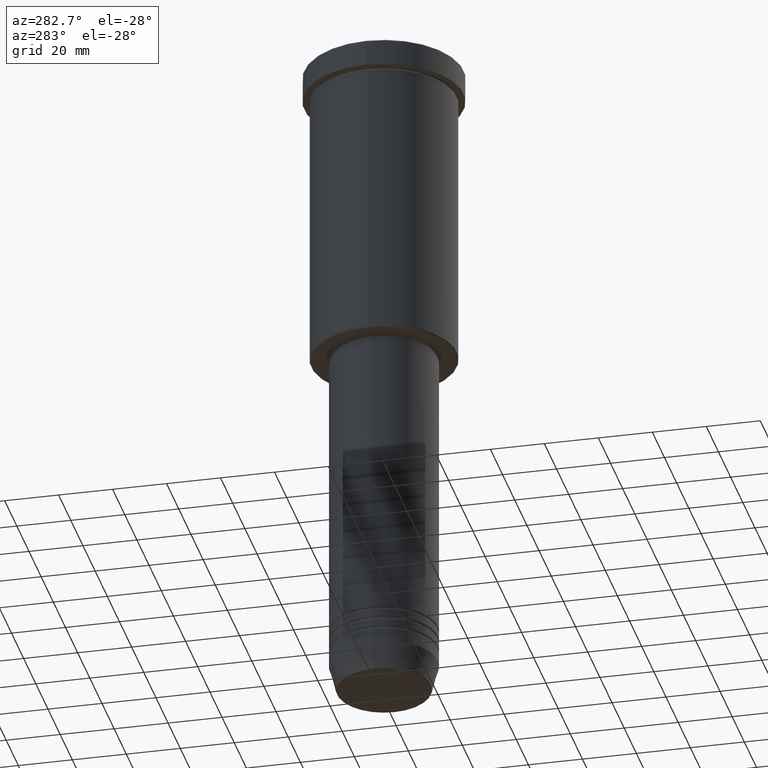
[diagram: clean part render]
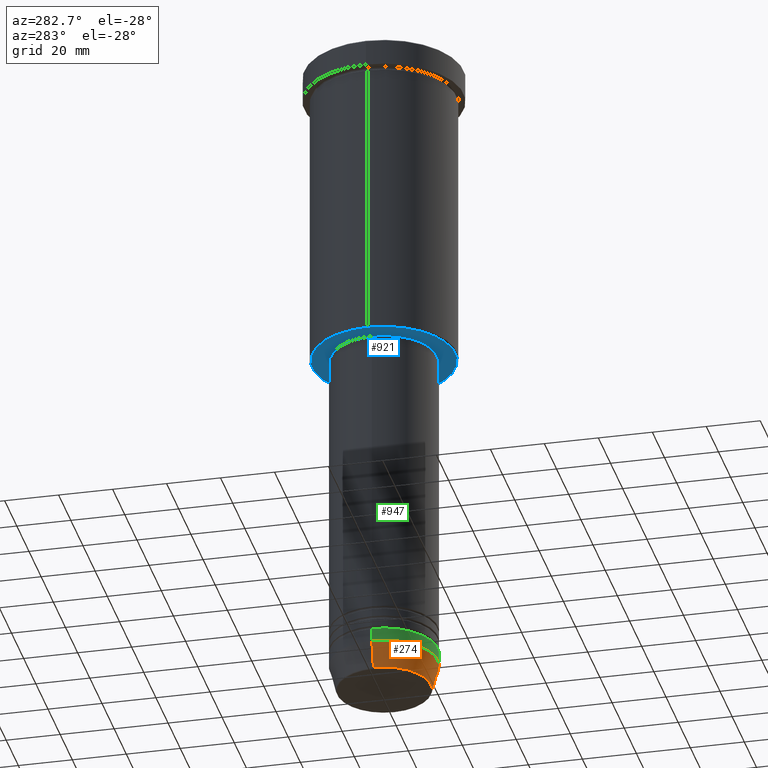
[diagram: same view with three faces highlighted in distinct colors, each labeled with its STEP entity id]
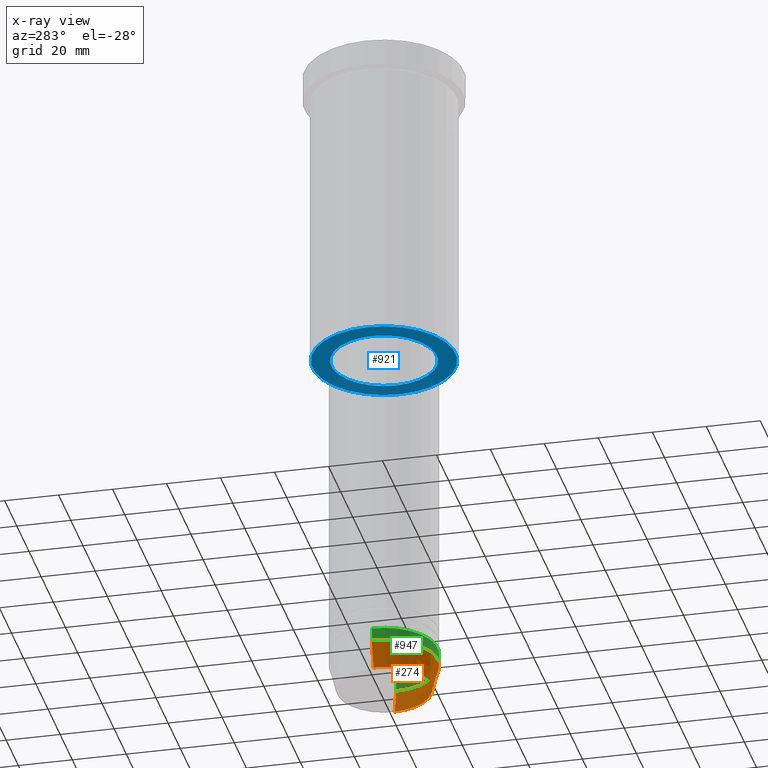
[diagram: x-ray of the same camera — body ghosted, the three highlighted faces saturated]
A machine part, auxiliary view with three faces highlighted in distinct colors.
The next image is the same camera in x-ray (body ghosted, the three faces saturated) — at least one of them is partly hidden behind the body in this view.
Their STEP definitions:

[orange] entity #274 — the highlighted conical surface has half-angle 15 deg.
#4 = VECTOR ( 'NONE', #424, 1000.000000000000114 ) ;
#28 = CARTESIAN_POINT ( 'NONE',  ( -17.41980749484382329, 2.291302373663531915E-15, -250.6294095225512422 ) ) ;
#90 = AXIS2_PLACEMENT_3D ( 'NONE', #299, #386, #633 ) ;
#223 = CARTESIAN_POINT ( 'NONE',  ( 0.000000000000000000, 0.000000000000000000, -241.0000000000000000 ) ) ;
#274 = ADVANCED_FACE ( 'NONE', ( #679 ), #552, .T. ) ;
#283 = CARTESIAN_POINT ( 'NONE',  ( 20.00000000000000000, 0.000000000000000000, -241.0000000000000000 ) ) ;
#299 = CARTESIAN_POINT ( 'NONE',  ( 0.000000000000000000, 0.000000000000000000, -250.6294095225512422 ) ) ;
#314 = DIRECTION ( 'NONE',  ( 1.000000000000000000, 0.000000000000000000, 0.000000000000000000 ) ) ;
#360 = CARTESIAN_POINT ( 'NONE',  ( 20.00000000000000000, 0.000000000000000000, -241.0000000000000000 ) ) ;
#372 = DIRECTION ( 'NONE',  ( 0.2588190451025211836, 0.000000000000000000, 0.9659258262890680902 ) ) ;
#383 = EDGE_CURVE ( 'NONE', #643, #854, #965, .T. ) ;
#386 = DIRECTION ( 'NONE',  ( -0.000000000000000000, -0.000000000000000000, 1.000000000000000000 ) ) ;
#419 = DIRECTION ( 'NONE',  ( -0.000000000000000000, -0.000000000000000000, 1.000000000000000000 ) ) ;
#424 = DIRECTION ( 'NONE',  ( -0.2588190451025211836, 3.169619151431770488E-17, 0.9659258262890680902 ) ) ;
#520 = DIRECTION ( 'NONE',  ( 1.000000000000000000, 0.000000000000000000, 0.000000000000000000 ) ) ;
#532 = VERTEX_POINT ( 'NONE', #360 ) ;
#552 = CONICAL_SURFACE ( 'NONE', #1088, 20.00000000000000000, 0.2617993877991499074 ) ;
#573 = CIRCLE ( 'NONE', #1013, 20.00000000000000000 ) ;
#577 = ORIENTED_EDGE ( 'NONE', *, *, #668, .T. ) ;
#585 = CARTESIAN_POINT ( 'NONE',  ( -20.00000000000000000, 2.449293598294706513E-15, -241.0000000000000000 ) ) ;
#593 = CIRCLE ( 'NONE', #90, 17.41980749484382329 ) ;
#604 = CARTESIAN_POINT ( 'NONE',  ( 0.000000000000000000, 0.000000000000000000, -241.0000000000000000 ) ) ;
#633 = DIRECTION ( 'NONE',  ( 1.000000000000000000, 0.000000000000000000, 0.000000000000000000 ) ) ;
#643 = VERTEX_POINT ( 'NONE', #28 ) ;
#656 = VERTEX_POINT ( 'NONE', #1095 ) ;
#668 = EDGE_CURVE ( 'NONE', #656, #532, #833, .T. ) ;
#679 = FACE_OUTER_BOUND ( 'NONE', #771, .T. ) ;
#771 = EDGE_LOOP ( 'NONE', ( #1109, #1161, #577, #970 ) ) ;
#822 = VECTOR ( 'NONE', #372, 1000.000000000000114 ) ;
#833 = LINE ( 'NONE', #283, #822 ) ;
#854 = VERTEX_POINT ( 'NONE', #585 ) ;
#878 = CARTESIAN_POINT ( 'NONE',  ( -20.00000000000000000, 2.449293598294706513E-15, -241.0000000000000000 ) ) ;
#945 = EDGE_CURVE ( 'NONE', #854, #532, #573, .T. ) ;
#965 = LINE ( 'NONE', #878, #4 ) ;
#970 = ORIENTED_EDGE ( 'NONE', *, *, #945, .F. ) ;
#1013 = AXIS2_PLACEMENT_3D ( 'NONE', #604, #1067, #520 ) ;
#1067 = DIRECTION ( 'NONE',  ( -0.000000000000000000, -0.000000000000000000, 1.000000000000000000 ) ) ;
#1088 = AXIS2_PLACEMENT_3D ( 'NONE', #223, #419, #314 ) ;
#1093 = EDGE_CURVE ( 'NONE', #643, #656, #593, .T. ) ;
#1095 = CARTESIAN_POINT ( 'NONE',  ( 17.41980749484382329, 0.000000000000000000, -250.6294095225512422 ) ) ;
#1109 = ORIENTED_EDGE ( 'NONE', *, *, #383, .F. ) ;
#1161 = ORIENTED_EDGE ( 'NONE', *, *, #1093, .T. ) ;

[blue] entity #921 — the highlighted planar face has unit normal (0, 0, -1).
#69 = CARTESIAN_POINT ( 'NONE',  ( -26.49999999999993960, 3.275930187719166396E-15, -115.9999999999999858 ) ) ;
#88 = EDGE_CURVE ( 'NONE', #1023, #669, #1107, .T. ) ;
#229 = CARTESIAN_POINT ( 'NONE',  ( 0.000000000000000000, 0.000000000000000000, -115.9999999999999858 ) ) ;
#239 = CIRCLE ( 'NONE', #701, 26.49999999999993960 ) ;
#266 = FACE_OUTER_BOUND ( 'NONE', #575, .T. ) ;
#290 = AXIS2_PLACEMENT_3D ( 'NONE', #522, #1166, #886 ) ;
#291 = CARTESIAN_POINT ( 'NONE',  ( 26.49999999999993960, 0.000000000000000000, -115.9999999999999858 ) ) ;
#364 = CARTESIAN_POINT ( 'NONE',  ( -19.50000000000000000, 2.388061258337338939E-15, -115.9999999999999858 ) ) ;
#371 = CIRCLE ( 'NONE', #665, 19.50000000000000000 ) ;
#388 = DIRECTION ( 'NONE',  ( 1.000000000000000000, 0.000000000000000000, 0.000000000000000000 ) ) ;
#421 = VERTEX_POINT ( 'NONE', #364 ) ;
#422 = DIRECTION ( 'NONE',  ( -0.000000000000000000, -0.000000000000000000, 1.000000000000000000 ) ) ;
#440 = DIRECTION ( 'NONE',  ( 0.000000000000000000, 0.000000000000000000, -1.000000000000000000 ) ) ;
#456 = CARTESIAN_POINT ( 'NONE',  ( 19.50000000000000000, 0.000000000000000000, -115.9999999999999858 ) ) ;
#469 = CARTESIAN_POINT ( 'NONE',  ( 0.000000000000000000, 0.000000000000000000, -115.9999999999999858 ) ) ;
#471 = VERTEX_POINT ( 'NONE', #456 ) ;
#522 = CARTESIAN_POINT ( 'NONE',  ( 0.000000000000000000, 0.000000000000000000, -115.9999999999999858 ) ) ;
#575 = EDGE_LOOP ( 'NONE', ( #1092, #1030 ) ) ;
#627 = AXIS2_PLACEMENT_3D ( 'NONE', #986, #440, #875 ) ;
#662 = EDGE_CURVE ( 'NONE', #421, #471, #371, .T. ) ;
#663 = ORIENTED_EDGE ( 'NONE', *, *, #662, .T. ) ;
#665 = AXIS2_PLACEMENT_3D ( 'NONE', #469, #829, #388 ) ;
#669 = VERTEX_POINT ( 'NONE', #291 ) ;
#670 = EDGE_LOOP ( 'NONE', ( #776, #663 ) ) ;
#677 = DIRECTION ( 'NONE',  ( -1.000000000000000000, 0.000000000000000000, 0.000000000000000000 ) ) ;
#690 = PLANE ( 'NONE',  #627 ) ;
#701 = AXIS2_PLACEMENT_3D ( 'NONE', #229, #1044, #677 ) ;
#772 = CARTESIAN_POINT ( 'NONE',  ( 0.000000000000000000, 0.000000000000000000, -115.9999999999999858 ) ) ;
#776 = ORIENTED_EDGE ( 'NONE', *, *, #1178, .T. ) ;
#785 = CIRCLE ( 'NONE', #1068, 19.50000000000000000 ) ;
#815 = EDGE_CURVE ( 'NONE', #669, #1023, #239, .T. ) ;
#829 = DIRECTION ( 'NONE',  ( -0.000000000000000000, -0.000000000000000000, 1.000000000000000000 ) ) ;
#875 = DIRECTION ( 'NONE',  ( -1.000000000000000000, 0.000000000000000000, -0.000000000000000000 ) ) ;
#886 = DIRECTION ( 'NONE',  ( -1.000000000000000000, 0.000000000000000000, 0.000000000000000000 ) ) ;
#921 = ADVANCED_FACE ( 'NONE', ( #266, #1081 ), #690, .T. ) ;
#986 = CARTESIAN_POINT ( 'NONE',  ( 0.000000000000000000, 27.00000000000000355, -115.9999999999999858 ) ) ;
#1023 = VERTEX_POINT ( 'NONE', #69 ) ;
#1030 = ORIENTED_EDGE ( 'NONE', *, *, #88, .T. ) ;
#1035 = DIRECTION ( 'NONE',  ( 1.000000000000000000, 0.000000000000000000, 0.000000000000000000 ) ) ;
#1044 = DIRECTION ( 'NONE',  ( 0.000000000000000000, 0.000000000000000000, -1.000000000000000000 ) ) ;
#1068 = AXIS2_PLACEMENT_3D ( 'NONE', #772, #422, #1035 ) ;
#1081 = FACE_BOUND ( 'NONE', #670, .T. ) ;
#1092 = ORIENTED_EDGE ( 'NONE', *, *, #815, .T. ) ;
#1107 = CIRCLE ( 'NONE', #290, 26.49999999999993960 ) ;
#1166 = DIRECTION ( 'NONE',  ( 0.000000000000000000, 0.000000000000000000, -1.000000000000000000 ) ) ;
#1178 = EDGE_CURVE ( 'NONE', #471, #421, #785, .T. ) ;

[green] entity #947 — the highlighted cylindrical surface (partial cylindrical patch) has radius 20 mm, axis along (-0, -0, 1).
#8 = ORIENTED_EDGE ( 'NONE', *, *, #156, .F. ) ;
#65 = CIRCLE ( 'NONE', #801, 20.00000000000000000 ) ;
#68 = VECTOR ( 'NONE', #244, 1000.000000000000000 ) ;
#114 = VERTEX_POINT ( 'NONE', #357 ) ;
#156 = EDGE_CURVE ( 'NONE', #854, #205, #193, .T. ) ;
#175 = DIRECTION ( 'NONE',  ( -0.000000000000000000, -0.000000000000000000, 1.000000000000000000 ) ) ;
#180 = FACE_OUTER_BOUND ( 'NONE', #851, .T. ) ;
#193 = LINE ( 'NONE', #1114, #293 ) ;
#205 = VERTEX_POINT ( 'NONE', #1010 ) ;
#228 = ORIENTED_EDGE ( 'NONE', *, *, #748, .T. ) ;
#244 = DIRECTION ( 'NONE',  ( -0.000000000000000000, -0.000000000000000000, 1.000000000000000000 ) ) ;
#261 = CYLINDRICAL_SURFACE ( 'NONE', #762, 20.00000000000000000 ) ;
#293 = VECTOR ( 'NONE', #307, 1000.000000000000000 ) ;
#307 = DIRECTION ( 'NONE',  ( -0.000000000000000000, -0.000000000000000000, 1.000000000000000000 ) ) ;
#323 = DIRECTION ( 'NONE',  ( 1.000000000000000000, 0.000000000000000000, 0.000000000000000000 ) ) ;
#357 = CARTESIAN_POINT ( 'NONE',  ( 20.00000000000000000, 0.000000000000000000, -236.0000000000000284 ) ) ;
#360 = CARTESIAN_POINT ( 'NONE',  ( 20.00000000000000000, 0.000000000000000000, -241.0000000000000000 ) ) ;
#398 = EDGE_CURVE ( 'NONE', #205, #114, #65, .T. ) ;
#436 = DIRECTION ( 'NONE',  ( 1.000000000000000000, 0.000000000000000000, 0.000000000000000000 ) ) ;
#520 = DIRECTION ( 'NONE',  ( 1.000000000000000000, 0.000000000000000000, 0.000000000000000000 ) ) ;
#530 = ORIENTED_EDGE ( 'NONE', *, *, #398, .F. ) ;
#532 = VERTEX_POINT ( 'NONE', #360 ) ;
#573 = CIRCLE ( 'NONE', #1013, 20.00000000000000000 ) ;
#585 = CARTESIAN_POINT ( 'NONE',  ( -20.00000000000000000, 2.449293598294706513E-15, -241.0000000000000000 ) ) ;
#604 = CARTESIAN_POINT ( 'NONE',  ( 0.000000000000000000, 0.000000000000000000, -241.0000000000000000 ) ) ;
#609 = ORIENTED_EDGE ( 'NONE', *, *, #945, .T. ) ;
#616 = CARTESIAN_POINT ( 'NONE',  ( 0.000000000000000000, 0.000000000000000000, 0.000000000000000000 ) ) ;
#667 = CARTESIAN_POINT ( 'NONE',  ( 0.000000000000000000, 0.000000000000000000, -236.0000000000000284 ) ) ;
#687 = DIRECTION ( 'NONE',  ( -0.000000000000000000, -0.000000000000000000, 1.000000000000000000 ) ) ;
#748 = EDGE_CURVE ( 'NONE', #532, #114, #1104, .T. ) ;
#762 = AXIS2_PLACEMENT_3D ( 'NONE', #616, #175, #436 ) ;
#779 = CARTESIAN_POINT ( 'NONE',  ( 20.00000000000000000, 0.000000000000000000, 0.000000000000000000 ) ) ;
#801 = AXIS2_PLACEMENT_3D ( 'NONE', #667, #687, #323 ) ;
#851 = EDGE_LOOP ( 'NONE', ( #8, #609, #228, #530 ) ) ;
#854 = VERTEX_POINT ( 'NONE', #585 ) ;
#945 = EDGE_CURVE ( 'NONE', #854, #532, #573, .T. ) ;
#947 = ADVANCED_FACE ( 'NONE', ( #180 ), #261, .T. ) ;
#1010 = CARTESIAN_POINT ( 'NONE',  ( -20.00000000000000000, 2.449293598294706513E-15, -236.0000000000000284 ) ) ;
#1013 = AXIS2_PLACEMENT_3D ( 'NONE', #604, #1067, #520 ) ;
#1067 = DIRECTION ( 'NONE',  ( -0.000000000000000000, -0.000000000000000000, 1.000000000000000000 ) ) ;
#1104 = LINE ( 'NONE', #779, #68 ) ;
#1114 = CARTESIAN_POINT ( 'NONE',  ( -20.00000000000000000, 2.449293598294706513E-15, 0.000000000000000000 ) ) ;